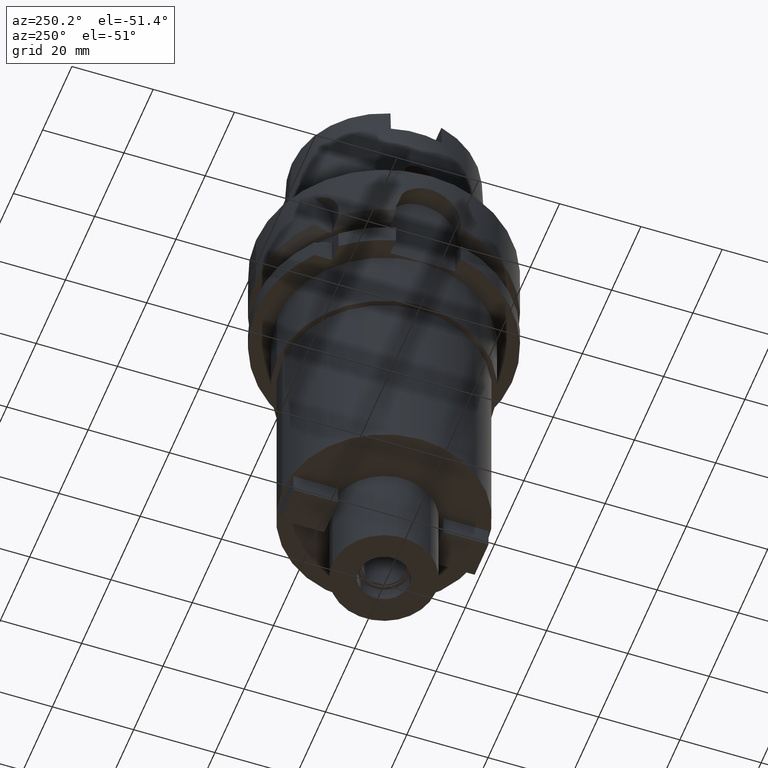
[diagram: clean part render]
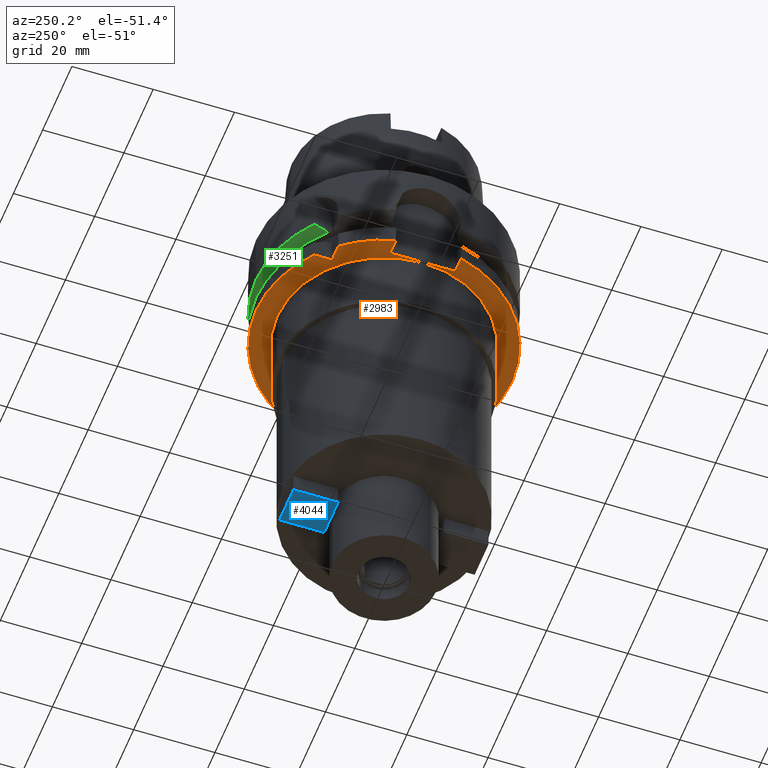
[diagram: same view with three faces highlighted in distinct colors, each labeled with its STEP entity id]
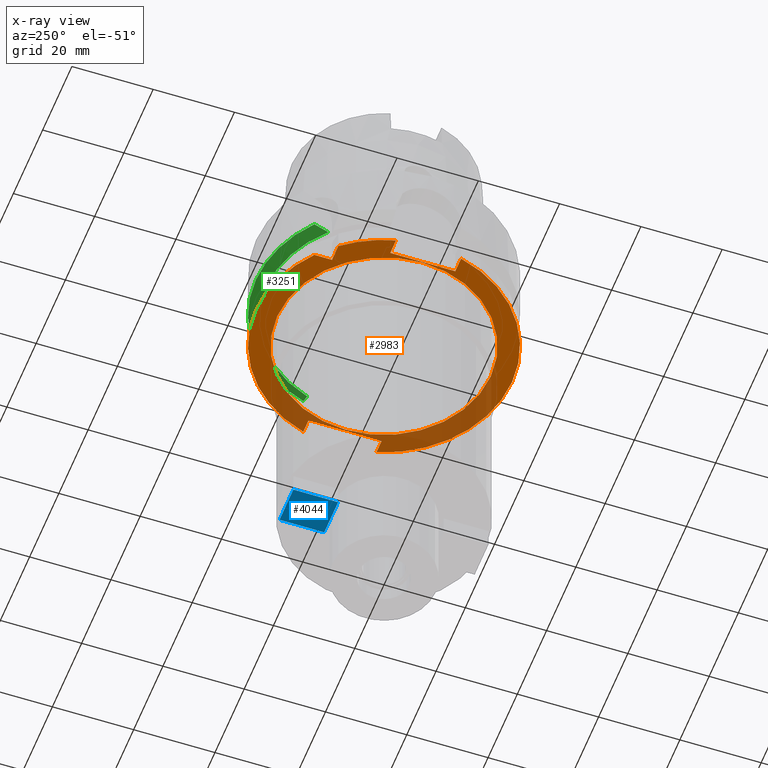
[diagram: x-ray of the same camera — body ghosted, the three highlighted faces saturated]
A machine part, auxiliary view with three faces highlighted in distinct colors.
The next image is the same camera in x-ray (body ghosted, the three faces saturated) — at least one of them is partly hidden behind the body in this view.
Their STEP definitions:

[orange] entity #2983 — the highlighted planar face has unit normal (0, 0, 1).
#658=DIRECTION('',(0.E0,1.E0,0.E0));
#659=VECTOR('',#658,1.6E1);
#660=CARTESIAN_POINT('',(-2.65E1,-8.E0,-2.6E1));
#661=LINE('',#660,#659);
#695=DIRECTION('',(-1.E0,-1.540316790609E-13,0.E0));
#696=VECTOR('',#695,4.336187047278E0);
#697=CARTESIAN_POINT('',(-2.E1,2.E1,-2.6E1));
#698=LINE('',#697,#696);
#702=CARTESIAN_POINT('',(0.E0,0.E0,-2.6E1));
#703=DIRECTION('',(0.E0,0.E0,1.E0));
#704=DIRECTION('',(-7.725773665802E-1,6.349206349206E-1,0.E0));
#705=AXIS2_PLACEMENT_3D('',#702,#703,#704);
#710=DIRECTION('',(-1.E0,-8.686570378871E-14,0.E0));
#711=VECTOR('',#710,3.967195473163E0);
#712=CARTESIAN_POINT('',(-2.65E1,-8.E0,-2.6E1));
#713=LINE('',#712,#711);
#717=CARTESIAN_POINT('',(0.E0,0.E0,-2.6E1));
#718=DIRECTION('',(0.E0,0.E0,1.E0));
#719=DIRECTION('',(-9.672125547036E-1,-2.539682539683E-1,0.E0));
#720=AXIS2_PLACEMENT_3D('',#717,#718,#719);
#725=CARTESIAN_POINT('',(0.E0,0.E0,-2.6E1));
#726=DIRECTION('',(0.E0,0.E0,1.E0));
#727=DIRECTION('',(0.E0,-1.E0,0.E0));
#728=AXIS2_PLACEMENT_3D('',#725,#726,#727);
#733=DIRECTION('',(0.E0,1.E0,0.E0));
#734=VECTOR('',#733,1.8E1);
#735=CARTESIAN_POINT('',(2.65E1,-9.E0,-2.6E1));
#736=LINE('',#735,#734);
#740=DIRECTION('',(1.E0,-7.275179563200E-14,0.E0));
#741=VECTOR('',#740,3.686917696248E0);
#742=CARTESIAN_POINT('',(2.65E1,9.E0,-2.6E1));
#743=LINE('',#742,#741);
#747=CARTESIAN_POINT('',(0.E0,0.E0,-2.6E1));
#748=DIRECTION('',(0.E0,0.E0,1.E0));
#749=DIRECTION('',(9.583148474999E-1,2.857142857143E-1,0.E0));
#750=AXIS2_PLACEMENT_3D('',#747,#748,#749);
#755=CARTESIAN_POINT('',(0.E0,0.E0,-2.6E1));
#756=DIRECTION('',(0.E0,0.E0,1.E0));
#757=DIRECTION('',(0.E0,1.E0,0.E0));
#758=AXIS2_PLACEMENT_3D('',#755,#756,#757);
#763=CARTESIAN_POINT('',(0.E0,0.E0,-2.6E1));
#764=DIRECTION('',(0.E0,0.E0,-1.E0));
#765=DIRECTION('',(0.E0,-1.E0,0.E0));
#766=AXIS2_PLACEMENT_3D('',#763,#764,#765);
#771=CARTESIAN_POINT('',(0.E0,0.E0,-2.6E1));
#772=DIRECTION('',(0.E0,0.E0,-1.E0));
#773=DIRECTION('',(0.E0,1.E0,0.E0));
#774=AXIS2_PLACEMENT_3D('',#771,#772,#773);
#779=DIRECTION('',(1.556703139446E-13,1.E0,0.E0));
#780=VECTOR('',#779,4.336187047278E0);
#781=CARTESIAN_POINT('',(-2.E1,2.E1,-2.6E1));
#782=LINE('',#781,#780);
#875=DIRECTION('',(1.E0,6.889739586341E-14,0.E0));
#876=VECTOR('',#875,3.686917696248E0);
#877=CARTESIAN_POINT('',(2.65E1,-9.E0,-2.6E1));
#878=LINE('',#877,#876);
#1233=DIRECTION('',(-1.E0,8.776122650818E-14,0.E0));
#1234=VECTOR('',#1233,3.967195473163E0);
#1235=CARTESIAN_POINT('',(-2.65E1,8.E0,-2.6E1));
#1236=LINE('',#1235,#1234);
#2329=CARTESIAN_POINT('',(0.E0,2.63E1,-2.6E1));
#2330=VERTEX_POINT('',#2329);
#2331=CARTESIAN_POINT('',(0.E0,-2.63E1,-2.6E1));
#2332=VERTEX_POINT('',#2331);
#2333=CARTESIAN_POINT('',(-2.E1,2.E1,-2.6E1));
#2334=CARTESIAN_POINT('',(-2.E1,2.433618704728E1,-2.6E1));
#2335=VERTEX_POINT('',#2333);
#2336=VERTEX_POINT('',#2334);
#2337=CARTESIAN_POINT('',(-2.433618704728E1,2.E1,-2.6E1));
#2338=VERTEX_POINT('',#2337);
#2339=CARTESIAN_POINT('',(-3.046719547316E1,8.E0,-2.6E1));
#2340=VERTEX_POINT('',#2339);
#2341=CARTESIAN_POINT('',(-2.65E1,8.E0,-2.6E1));
#2342=VERTEX_POINT('',#2341);
#2343=CARTESIAN_POINT('',(-2.65E1,-8.E0,-2.6E1));
#2344=VERTEX_POINT('',#2343);
#2345=CARTESIAN_POINT('',(-3.046719547316E1,-8.E0,-2.6E1));
#2346=VERTEX_POINT('',#2345);
#2347=CARTESIAN_POINT('',(-1.425430758458E-14,-3.15E1,-2.6E1));
#2348=CARTESIAN_POINT('',(3.018691769625E1,-9.E0,-2.6E1));
#2349=VERTEX_POINT('',#2347);
#2350=VERTEX_POINT('',#2348);
#2351=CARTESIAN_POINT('',(2.65E1,-9.E0,-2.6E1));
#2352=VERTEX_POINT('',#2351);
#2353=CARTESIAN_POINT('',(2.65E1,9.E0,-2.6E1));
#2354=VERTEX_POINT('',#2353);
#2355=CARTESIAN_POINT('',(3.018691769625E1,9.E0,-2.6E1));
#2356=VERTEX_POINT('',#2355);
#2357=CARTESIAN_POINT('',(0.E0,3.15E1,-2.6E1));
#2358=VERTEX_POINT('',#2357);
#2945=CARTESIAN_POINT('',(0.E0,0.E0,-2.6E1));
#2946=DIRECTION('',(0.E0,0.E0,1.E0));
#2947=DIRECTION('',(0.E0,1.E0,0.E0));
#2948=AXIS2_PLACEMENT_3D('',#2945,#2946,#2947);
#2949=PLANE('',#2948);
#2951=ORIENTED_EDGE('',*,*,#2950,.F.);
#2953=ORIENTED_EDGE('',*,*,#2952,.T.);
#2955=ORIENTED_EDGE('',*,*,#2954,.T.);
#2957=ORIENTED_EDGE('',*,*,#2956,.F.);
#2958=ORIENTED_EDGE('',*,*,#2922,.F.);
#2960=ORIENTED_EDGE('',*,*,#2959,.T.);
#2962=ORIENTED_EDGE('',*,*,#2961,.T.);
#2964=ORIENTED_EDGE('',*,*,#2963,.T.);
#2966=ORIENTED_EDGE('',*,*,#2965,.F.);
#2968=ORIENTED_EDGE('',*,*,#2967,.T.);
#2970=ORIENTED_EDGE('',*,*,#2969,.T.);
#2972=ORIENTED_EDGE('',*,*,#2971,.T.);
#2974=ORIENTED_EDGE('',*,*,#2973,.T.);
#2975=EDGE_LOOP('',(#2951,#2953,#2955,#2957,#2958,#2960,#2962,#2964,#2966,#2968,
#2970,#2972,#2974));
#2976=FACE_OUTER_BOUND('',#2975,.F.);
#2978=ORIENTED_EDGE('',*,*,#2977,.T.);
#2980=ORIENTED_EDGE('',*,*,#2979,.T.);
#2981=EDGE_LOOP('',(#2978,#2980));
#2982=FACE_BOUND('',#2981,.F.);
#706=CIRCLE('',#705,3.15E1);
#721=CIRCLE('',#720,3.15E1);
#729=CIRCLE('',#728,3.15E1);
#751=CIRCLE('',#750,3.15E1);
#759=CIRCLE('',#758,3.15E1);
#767=CIRCLE('',#766,2.63E1);
#775=CIRCLE('',#774,2.63E1);
#2922=EDGE_CURVE('',#2344,#2342,#661,.T.);
#2950=EDGE_CURVE('',#2335,#2336,#782,.T.);
#2952=EDGE_CURVE('',#2335,#2338,#698,.T.);
#2954=EDGE_CURVE('',#2338,#2340,#706,.T.);
#2956=EDGE_CURVE('',#2342,#2340,#1236,.T.);
#2959=EDGE_CURVE('',#2344,#2346,#713,.T.);
#2961=EDGE_CURVE('',#2346,#2349,#721,.T.);
#2963=EDGE_CURVE('',#2349,#2350,#729,.T.);
#2965=EDGE_CURVE('',#2352,#2350,#878,.T.);
#2967=EDGE_CURVE('',#2352,#2354,#736,.T.);
#2969=EDGE_CURVE('',#2354,#2356,#743,.T.);
#2971=EDGE_CURVE('',#2356,#2358,#751,.T.);
#2973=EDGE_CURVE('',#2358,#2336,#759,.T.);
#2977=EDGE_CURVE('',#2332,#2330,#767,.T.);
#2979=EDGE_CURVE('',#2330,#2332,#775,.T.);
#2983=ADVANCED_FACE('',(#2976,#2982),#2949,.F.);

[blue] entity #4044 — the highlighted planar face has unit normal (0, 0, -1).
#2029=DIRECTION('',(-1.E0,0.E0,0.E0));
#2030=VECTOR('',#2029,9.5E0);
#2031=CARTESIAN_POINT('',(4.75E0,1.3E1,-9.5E1));
#2032=LINE('',#2031,#2030);
#2057=DIRECTION('',(0.E0,-1.E0,0.E0));
#2058=VECTOR('',#2057,1.1E1);
#2059=CARTESIAN_POINT('',(4.75E0,2.4E1,-9.5E1));
#2060=LINE('',#2059,#2058);
#2085=DIRECTION('',(0.E0,-1.E0,0.E0));
#2086=VECTOR('',#2085,1.1E1);
#2087=CARTESIAN_POINT('',(-4.75E0,2.4E1,-9.5E1));
#2088=LINE('',#2087,#2086);
#2092=DIRECTION('',(-1.E0,0.E0,0.E0));
#2093=VECTOR('',#2092,9.5E0);
#2094=CARTESIAN_POINT('',(4.75E0,2.4E1,-9.5E1));
#2095=LINE('',#2094,#2093);
#2487=CARTESIAN_POINT('',(-4.75E0,1.3E1,-9.5E1));
#2488=VERTEX_POINT('',#2487);
#2489=CARTESIAN_POINT('',(-4.75E0,2.4E1,-9.5E1));
#2490=VERTEX_POINT('',#2489);
#2491=CARTESIAN_POINT('',(4.75E0,1.3E1,-9.5E1));
#2492=VERTEX_POINT('',#2491);
#2493=CARTESIAN_POINT('',(4.75E0,2.4E1,-9.5E1));
#2494=VERTEX_POINT('',#2493);
#4033=CARTESIAN_POINT('',(-4.75E0,1.3E1,-9.5E1));
#4034=DIRECTION('',(0.E0,0.E0,-1.E0));
#4035=DIRECTION('',(0.E0,1.E0,0.E0));
#4036=AXIS2_PLACEMENT_3D('',#4033,#4034,#4035);
#4037=PLANE('',#4036);
#4038=ORIENTED_EDGE('',*,*,#3985,.T.);
#4039=ORIENTED_EDGE('',*,*,#4000,.F.);
#4040=ORIENTED_EDGE('',*,*,#4014,.F.);
#4041=ORIENTED_EDGE('',*,*,#4027,.T.);
#4042=EDGE_LOOP('',(#4038,#4039,#4040,#4041));
#4043=FACE_OUTER_BOUND('',#4042,.F.);
#3985=EDGE_CURVE('',#2490,#2488,#2088,.T.);
#4000=EDGE_CURVE('',#2492,#2488,#2032,.T.);
#4014=EDGE_CURVE('',#2494,#2492,#2060,.T.);
#4027=EDGE_CURVE('',#2494,#2490,#2095,.T.);
#4044=ADVANCED_FACE('',(#4043),#4037,.T.);

[green] entity #3251 — the highlighted conical surface has half-angle 60 deg.
#435=CARTESIAN_POINT('',(-2.000000400336E1,2.085831984813E1,-1.6125E1));
#436=CARTESIAN_POINT('',(-2.000000400336E1,2.124693612611E1,-1.596305091794E1));
#437=CARTESIAN_POINT('',(-1.999999996842E1,2.202241096369E1,-1.563531564574E1));
#438=CARTESIAN_POINT('',(-1.999999410548E1,2.318185418818E1,-1.513467824538E1));
#439=CARTESIAN_POINT('',(-2.000001377493E1,2.395169337056E1,-1.479394879248E1));
#440=CARTESIAN_POINT('',(-2.000001377493E1,2.433617572673E1,-1.462245154171E1));
#498=CARTESIAN_POINT('',(0.E0,0.E0,-1.6125E1));
#499=DIRECTION('',(0.E0,0.E0,1.E0));
#500=DIRECTION('',(9.502643111725E-1,3.114446000686E-1,0.E0));
#501=AXIS2_PLACEMENT_3D('',#498,#499,#500);
#506=CARTESIAN_POINT('',(0.E0,0.E0,-1.6125E1));
#507=DIRECTION('',(0.E0,0.E0,1.E0));
#508=DIRECTION('',(0.E0,1.E0,0.E0));
#509=AXIS2_PLACEMENT_3D('',#506,#507,#508);
#1106=CARTESIAN_POINT('',(2.746035048403E1,9.000000214625E0,-1.6125E1));
#1107=CARTESIAN_POINT('',(2.775592251180E1,9.000000214625E0,-1.596283873661E1));
#1108=CARTESIAN_POINT('',(2.835197305829E1,8.999999992174E0,-1.563531811794E1));
#1109=CARTESIAN_POINT('',(2.926081981772E1,8.999999705452E0,-1.513446654662E1));
#1110=CARTESIAN_POINT('',(2.987656844124E1,9.000000692496E0,-1.479420629313E1));
#1111=CARTESIAN_POINT('',(3.018691748979E1,9.000000692496E0,-1.462249534001E1));
#1116=CARTESIAN_POINT('',(0.E0,0.E0,-1.462250092524E1));
#1117=DIRECTION('',(0.E0,0.E0,1.E0));
#1118=DIRECTION('',(9.583148474999E-1,2.857142857143E-1,0.E0));
#1119=AXIS2_PLACEMENT_3D('',#1116,#1117,#1118);
#1124=CARTESIAN_POINT('',(0.E0,0.E0,-1.462250092524E1));
#1125=DIRECTION('',(0.E0,0.E0,1.E0));
#1126=DIRECTION('',(0.E0,1.E0,0.E0));
#1127=AXIS2_PLACEMENT_3D('',#1124,#1125,#1126);
#2365=CARTESIAN_POINT('',(-2.000000400336E1,2.085831984813E1,-1.6125E1));
#2367=VERTEX_POINT('',#2365);
#2368=VERTEX_POINT('',#440);
#2470=CARTESIAN_POINT('',(2.746035048403E1,9.000000214625E0,-1.6125E1));
#2471=VERTEX_POINT('',#2470);
#2472=CARTESIAN_POINT('',(2.644025879904E-14,2.889759526419E1,-1.6125E1));
#2473=VERTEX_POINT('',#2472);
#2476=VERTEX_POINT('',#1111);
#2477=CARTESIAN_POINT('',(0.E0,3.15E1,-1.462250092524E1));
#2478=VERTEX_POINT('',#2477);
#3238=CARTESIAN_POINT('',(0.E0,0.E0,-1.537375046262E1));
#3239=DIRECTION('',(0.E0,0.E0,1.E0));
#3240=DIRECTION('',(0.E0,1.E0,0.E0));
#3241=AXIS2_PLACEMENT_3D('',#3238,#3239,#3240);
#3242=CONICAL_SURFACE('',#3241,3.019879763210E1,6.E1);
#3243=ORIENTED_EDGE('',*,*,#2769,.F.);
#3244=ORIENTED_EDGE('',*,*,#2803,.F.);
#3245=ORIENTED_EDGE('',*,*,#2801,.F.);
#3246=ORIENTED_EDGE('',*,*,#3233,.T.);
#3247=ORIENTED_EDGE('',*,*,#3203,.T.);
#3248=ORIENTED_EDGE('',*,*,#2738,.T.);
#3249=EDGE_LOOP('',(#3243,#3244,#3245,#3246,#3247,#3248));
#3250=FACE_OUTER_BOUND('',#3249,.F.);
#441=B_SPLINE_CURVE_WITH_KNOTS('',3,(#435,#436,#437,#438,#439,#440),
.UNSPECIFIED.,.F.,.F.,(4,1,1,4),(0.E0,3.333333333333E-1,6.666666666667E-1,1.E0),
.UNSPECIFIED.);
#502=CIRCLE('',#501,2.889759526419E1);
#510=CIRCLE('',#509,2.889759526419E1);
#1112=B_SPLINE_CURVE_WITH_KNOTS('',3,(#1106,#1107,#1108,#1109,#1110,#1111),
.UNSPECIFIED.,.F.,.F.,(4,1,1,4),(0.E0,3.333333333333E-1,6.666666666667E-1,1.E0),
.UNSPECIFIED.);
#1120=CIRCLE('',#1119,3.15E1);
#1128=CIRCLE('',#1127,3.15E1);
#2738=EDGE_CURVE('',#2478,#2368,#1128,.T.);
#2769=EDGE_CURVE('',#2367,#2368,#441,.T.);
#2801=EDGE_CURVE('',#2471,#2473,#502,.T.);
#2803=EDGE_CURVE('',#2473,#2367,#510,.T.);
#3203=EDGE_CURVE('',#2476,#2478,#1120,.T.);
#3233=EDGE_CURVE('',#2471,#2476,#1112,.T.);
#3251=ADVANCED_FACE('',(#3250),#3242,.T.);